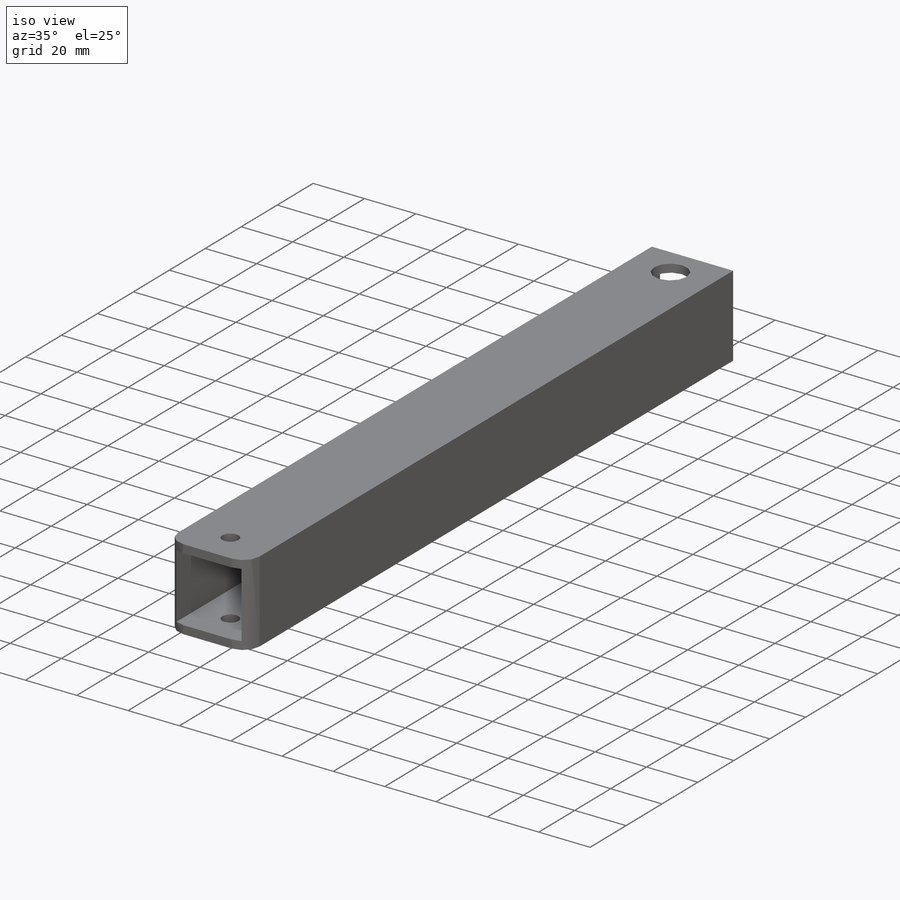
[diagram: iso view]
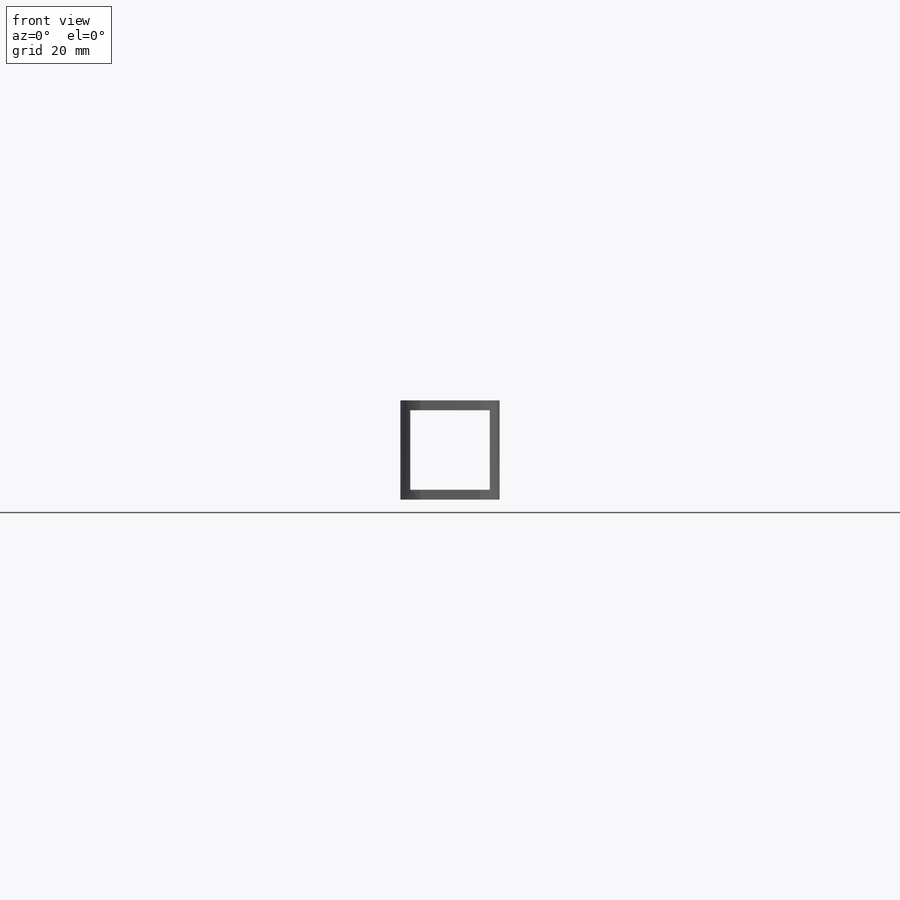
[diagram: front view]
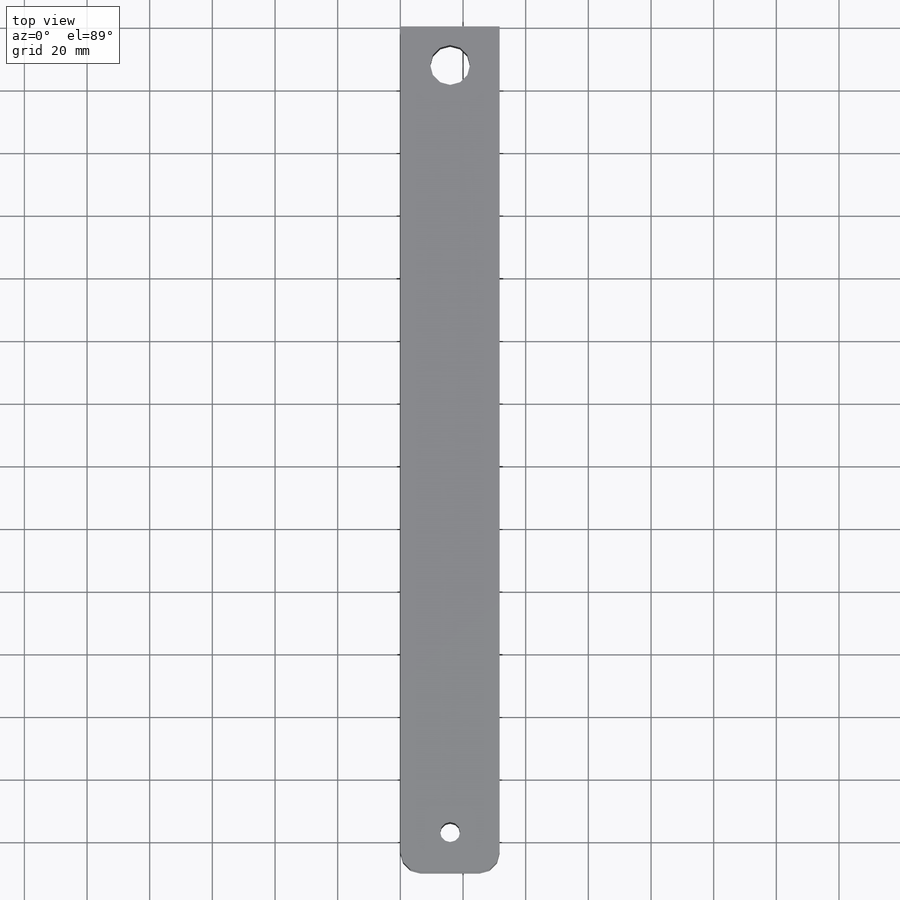
[diagram: top view]
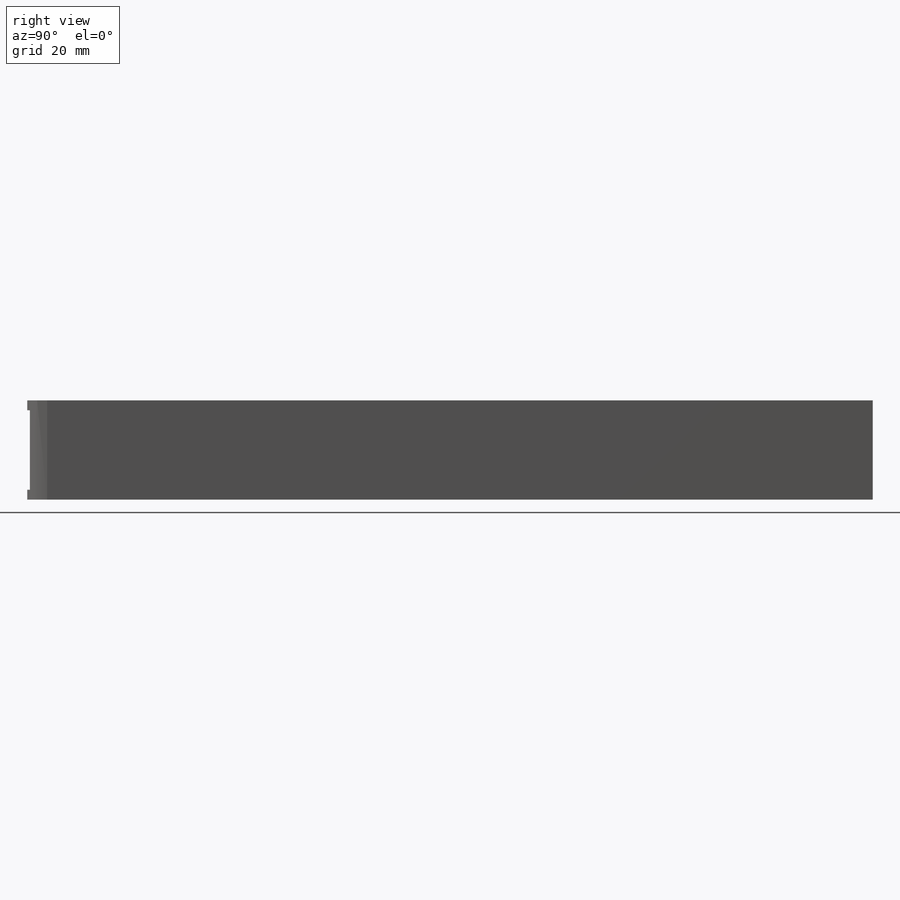
[diagram: right view]
SOLIDWORKS PART (.sldprt)
format: sldprt  version: not decoded by parser v0  size: 235,008 bytes
history: native  units: mm
features: sketch x5, extrude x2, cut_extrude x2, material x1, fillet x1 + 1 further entry (+14 scaffold rows collapsed)
feature tree (26):
  scaffold x14  (default folders/planes/origin — collapsed)
  material  "6063-T5"
  "Origin"  ID=-1
  sketch  "Sketch1"  dims[D1=31.6865mm D2=31.6865mm]
  extrude  "Boss-Extrude1"  Depth=269.875mm
  sketch  "Sketch2"  dims[D1=3.175mm]
  cut_extrude  "Cut-Extrude1"  [1 undecoded]
  sketch  "Sketch3"
  sketch  "Sketch4"
  sketch  "Sketch6"  dims[c1.D1=6.35mm c1.D2=12.7mm c1.D3=9.525mm c1.D4=9.525mm c2.D3=12.319mm c2.D4=12.7mm c2.D5=12.7mm c2.D6=15.875mm c3.D4=15.875mm]
  cut_extrude  "Cut-Extrude3"  [1 undecoded]
  extrude  "Axis2"  [1 undecoded]
  fillet  "Fillet1"  Radius=6.35mm
decode coverage: 5 of 10 modeling features carry decoded parameters; 1 rows unclassified (native names shown)
note: 3 parameter values undecoded
summary: no parameter record found for 3 features
note: suppression state not decoded; provenance and decode notes live in map.json
